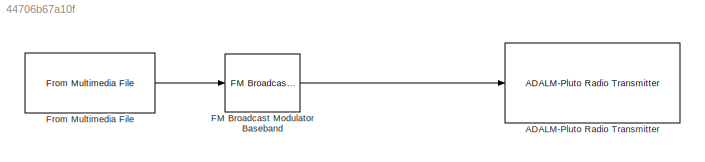
MODEL slx_44706b67a10f
KIND model
CONFIG AbsTol = auto
CONFIG EnableMultiTasking = off
CONFIG FixedStep = auto
CONFIG MaxStep = auto
CONFIG MinStep = auto
CONFIG RelTol = 1e-3
CONFIG SampleTimeConstraint = Unconstrained
CONFIG SolverName = VariableStepAuto
CONFIG StartTime = 0.0
CONFIG StopTime = inf
BLOCK [Reference] ADALM-Pluto Radio Transmitter  REF=plutoradiolib/ADALM-Pluto Radio
Transmitter
  SourceBlock = plutoradiolib/ADALM-Pluto Radio\nTransmitter
  SourceType = comm.SDRTxPluto
BLOCK [Reference] FM Broadcast Modulator Baseband  REF=commanabbnd3/FM Broadcast
Modulator
Baseband
  SourceBlock = commanabbnd3/FM Broadcast\nModulator\nBaseband
  SourceType = FM Broadcast Modulator Baseband
BLOCK [Reference] From Multimedia File  REF=dspvision/From Multimedia File
  SourceBlock = dspvision/From Multimedia File
  SourceType = From Multimedia File
LINE FM Broadcast Modulator Baseband:1 -> ADALM-Pluto Radio Transmitter:1
LINE From Multimedia File:1 -> FM Broadcast Modulator Baseband:1
